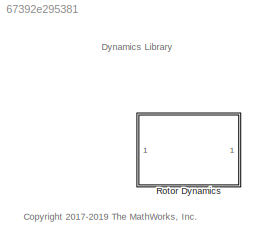
MODEL slx_67392e295381
KIND library
CONFIG AbsTol = auto
CONFIG EnableMultiTasking = on
CONFIG FixedStep = auto
CONFIG MaxStep = auto
CONFIG MinStep = auto
CONFIG RelTol = 1e-3
CONFIG SampleTimeConstraint = Unconstrained
CONFIG SolverName = ode45
CONFIG StartTime = 0.0
CONFIG StopTime = 10.0
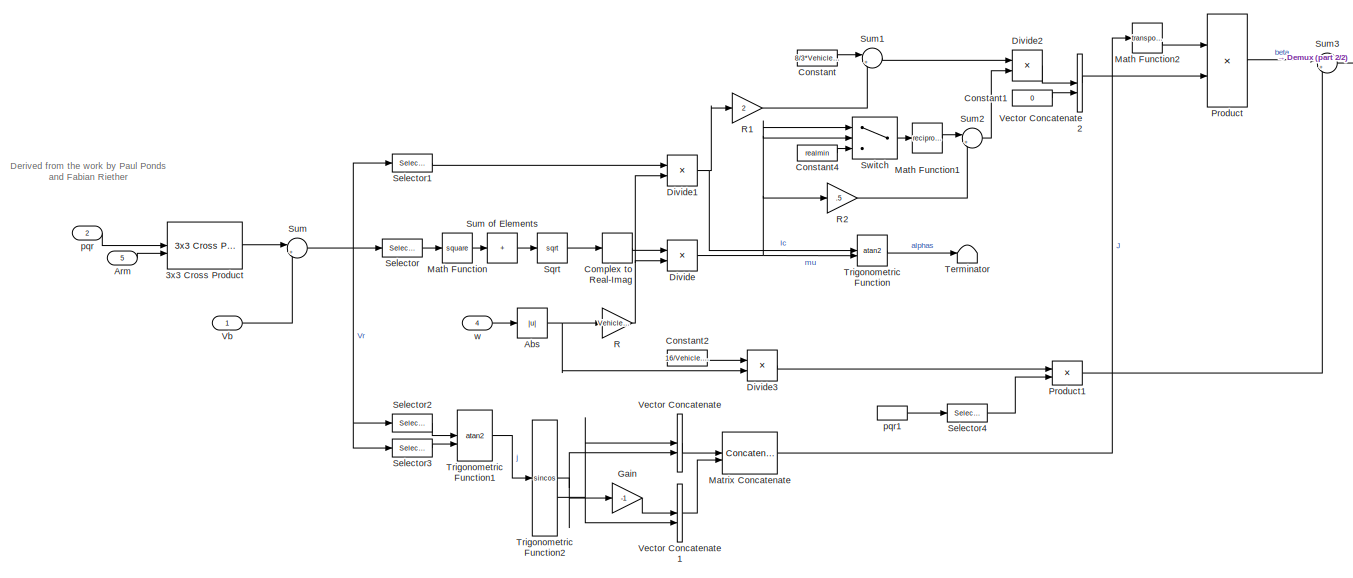
[diagram: Rotor Dynamics - part 1/2, left side, full height]
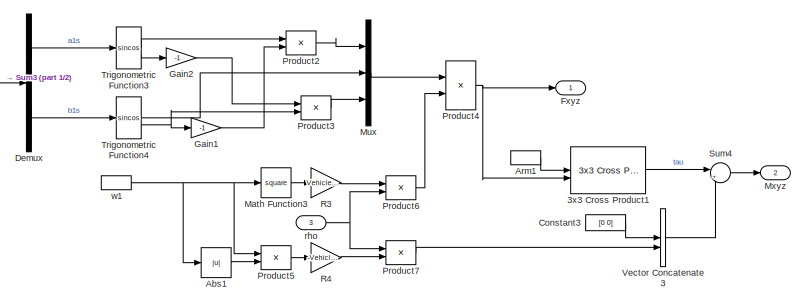
[diagram: Rotor Dynamics - part 2/2, middle right region]
BLOCK [SubSystem] Rotor Dynamics
  RTWFcnNameOpts = Use subsystem name
  RTWFileNameOpts = Use function name
  RTWSystemCode = Reusable function
  TreatAsAtomicUnit = on
BLOCK [Reference] Rotor Dynamics/3x3 Cross Product  REF=sharedutil/3x3 Cross Product
  SourceBlock = sharedutil/3x3 Cross Product
  SourceType = CrossProduct
BLOCK [Reference] Rotor Dynamics/3x3 Cross Product1  REF=sharedutil/3x3 Cross Product
  SourceBlock = sharedutil/3x3 Cross Product
  SourceType = CrossProduct
BLOCK [Abs] Rotor Dynamics/Abs
  SaturateOnIntegerOverflow = off
BLOCK [Abs] Rotor Dynamics/Abs1
  SaturateOnIntegerOverflow = off
BLOCK [Inport] Rotor Dynamics/Arm
  Port = 5
  PortDimensions = [3 1]
BLOCK [InportShadow] Rotor Dynamics/Arm1
  Port = 5
  PortDimensions = [3 1]
BLOCK [ComplexToRealImag] Rotor Dynamics/Complex to Real-Imag
  Output = Real
BLOCK [Constant] Rotor Dynamics/Constant
  Value = 8/3*Vehicle.Rotor.theta0+2*Vehicle.Rotor.theta1
BLOCK [Constant] Rotor Dynamics/Constant1
  Value = 0
BLOCK [Constant] Rotor Dynamics/Constant2
  Value = 16/Vehicle.Rotor.lock
BLOCK [Constant] Rotor Dynamics/Constant3
  Value = [0 0]
BLOCK [Constant] Rotor Dynamics/Constant4
  Value = realmin
BLOCK [Demux] Rotor Dynamics/Demux
  Outputs = 2
BLOCK [Product] Rotor Dynamics/Divide
  Inputs = */
BLOCK [Product] Rotor Dynamics/Divide1
  Inputs = */
BLOCK [Product] Rotor Dynamics/Divide2
  Inputs = */
BLOCK [Product] Rotor Dynamics/Divide3
  Inputs = */
BLOCK [Outport] Rotor Dynamics/Fxyz
  PortDimensions = [3 1]
  VectorParamsAs1DForOutWhenUnconnected = off
BLOCK [Gain] Rotor Dynamics/Gain
  Gain = -1
BLOCK [Gain] Rotor Dynamics/Gain1
  Gain = -1
BLOCK [Gain] Rotor Dynamics/Gain2
  Gain = -1
BLOCK [Math] Rotor Dynamics/Math Function
  Operator = square
  SignedPower = on
BLOCK [Math] Rotor Dynamics/Math Function1
  Operator = reciprocal
  SignedPower = on
BLOCK [Math] Rotor Dynamics/Math Function2
  Operator = transpose
  SignedPower = on
BLOCK [Math] Rotor Dynamics/Math Function3
  Operator = square
  SignedPower = on
BLOCK [Concatenate] Rotor Dynamics/Matrix Concatenate
  ConcatenateDimension = 2
  Mode = Multidimensional array
BLOCK [Mux] Rotor Dynamics/Mux
  DisplayOption = bar
  Inputs = 3
BLOCK [Outport] Rotor Dynamics/Mxyz
  Port = 2
  PortDimensions = [3 1]
  VectorParamsAs1DForOutWhenUnconnected = off
BLOCK [Product] Rotor Dynamics/Product
  Multiplication = Matrix(*)
BLOCK [Product] Rotor Dynamics/Product1
BLOCK [Product] Rotor Dynamics/Product2
BLOCK [Product] Rotor Dynamics/Product3
BLOCK [Product] Rotor Dynamics/Product4
BLOCK [Product] Rotor Dynamics/Product5
BLOCK [Product] Rotor Dynamics/Product6
BLOCK [Product] Rotor Dynamics/Product7
BLOCK [Gain] Rotor Dynamics/R
  Gain = Vehicle.Rotor.radius
BLOCK [Gain] Rotor Dynamics/R1
  Gain = 2
BLOCK [Gain] Rotor Dynamics/R2
  Gain = .5
BLOCK [Gain] Rotor Dynamics/R3
  Gain = Vehicle.Rotor.Ct*Vehicle.Rotor.radius^2*Vehicle.Rotor.area
BLOCK [Gain] Rotor Dynamics/R4
  Gain = -Vehicle.Rotor.Cq*Vehicle.Rotor.radius^3*Vehicle.Rotor.area
BLOCK [Selector] Rotor Dynamics/Selector
  IndexOptions = Index vector (dialog)
  Indices = [1 2]
  InputPortWidth = 3
  OutputSizes = 1
BLOCK [Selector] Rotor Dynamics/Selector1
  IndexOptions = Index vector (dialog)
  Indices = [3]
  InputPortWidth = 3
  OutputSizes = 1
BLOCK [Selector] Rotor Dynamics/Selector2
  IndexOptions = Index vector (dialog)
  Indices = [2]
  InputPortWidth = 3
  OutputSizes = 1
BLOCK [Selector] Rotor Dynamics/Selector3
  IndexOptions = Index vector (dialog)
  Indices = [1]
  InputPortWidth = 3
  OutputSizes = 1
BLOCK [Selector] Rotor Dynamics/Selector4
  IndexOptions = Index vector (dialog)
  Indices = [2 1]
  InputPortWidth = 3
  OutputSizes = 1
BLOCK [Sqrt] Rotor Dynamics/Sqrt
  OutputSignalType = complex
BLOCK [Sum] Rotor Dynamics/Sum
  Inputs = |++
BLOCK [Sum] Rotor Dynamics/Sum of Elements
  IconShape = rectangular
  Inputs = +
BLOCK [Sum] Rotor Dynamics/Sum1
  Inputs = |+-
BLOCK [Sum] Rotor Dynamics/Sum2
  Inputs = |+-
BLOCK [Sum] Rotor Dynamics/Sum3
  Inputs = |+-
BLOCK [Sum] Rotor Dynamics/Sum4
  Inputs = |++
BLOCK [Switch] Rotor Dynamics/Switch
  Criteria = u2 ~= 0
  InputSameDT = off
  SaturateOnIntegerOverflow = off
BLOCK [Terminator] Rotor Dynamics/Terminator
BLOCK [Trigonometry] Rotor Dynamics/Trigonometric Function
  Operator = atan2
BLOCK [Trigonometry] Rotor Dynamics/Trigonometric Function1
  Operator = atan2
BLOCK [Trigonometry] Rotor Dynamics/Trigonometric Function2
  Operator = sincos
BLOCK [Trigonometry] Rotor Dynamics/Trigonometric Function3
  Operator = sincos
BLOCK [Trigonometry] Rotor Dynamics/Trigonometric Function4
  Operator = sincos
BLOCK [Inport] Rotor Dynamics/Vb
  PortDimensions = 3
BLOCK [Concatenate] Rotor Dynamics/Vector Concatenate
BLOCK [Concatenate] Rotor Dynamics/Vector Concatenate1
BLOCK [Concatenate] Rotor Dynamics/Vector Concatenate2
BLOCK [Concatenate] Rotor Dynamics/Vector Concatenate3
BLOCK [Inport] Rotor Dynamics/pqr
  Port = 2
  PortDimensions = 3
BLOCK [InportShadow] Rotor Dynamics/pqr1
  Port = 2
  PortDimensions = 3
BLOCK [Inport] Rotor Dynamics/rho
  Port = 3
  PortDimensions = 1
BLOCK [Inport] Rotor Dynamics/w
  Port = 4
  PortDimensions = [1 1]
BLOCK [InportShadow] Rotor Dynamics/w1
  Port = 4
  PortDimensions = [1 1]
ANNOTATION (root): <copyright redacted>
ANNOTATION (root): Dynamics Library
ANNOTATION Rotor Dynamics: Derived from the work by Paul Ponds and Fabian Riether
LINE Rotor Dynamics/3x3 Cross Product1:1 -> Rotor Dynamics/Sum4:1
LINE Rotor Dynamics/3x3 Cross Product:1 -> Rotor Dynamics/Sum:1
LINE Rotor Dynamics/Abs1:1 -> Rotor Dynamics/Product5:2
NET Rotor Dynamics/Abs:1 -> Rotor Dynamics/Divide3:2, Rotor Dynamics/R:1
LINE Rotor Dynamics/Arm1:1 -> Rotor Dynamics/3x3 Cross Product1:1
LINE Rotor Dynamics/Arm:1 -> Rotor Dynamics/3x3 Cross Product:2
LINE Rotor Dynamics/Complex to Real-Imag:1 -> Rotor Dynamics/Divide:1
LINE Rotor Dynamics/Constant1:1 -> Rotor Dynamics/Vector Concatenate2:2
LINE Rotor Dynamics/Constant2:1 -> Rotor Dynamics/Divide3:1
LINE Rotor Dynamics/Constant3:1 -> Rotor Dynamics/Vector Concatenate3:1
LINE Rotor Dynamics/Constant4:1 -> Rotor Dynamics/Switch:3
LINE Rotor Dynamics/Constant:1 -> Rotor Dynamics/Sum1:1
LINE Rotor Dynamics/Demux:1 -> Rotor Dynamics/Trigonometric Function3:1
LINE Rotor Dynamics/Demux:2 -> Rotor Dynamics/Trigonometric Function4:1
NET Rotor Dynamics/Divide1:1 -> Rotor Dynamics/R1:1, Rotor Dynamics/Trigonometric Function:1
LINE Rotor Dynamics/Divide2:1 -> Rotor Dynamics/Vector Concatenate2:1
LINE Rotor Dynamics/Divide3:1 -> Rotor Dynamics/Product1:1
NET Rotor Dynamics/Divide:1 -> Rotor Dynamics/R2:1, Rotor Dynamics/Switch:1, Rotor Dynamics/Switch:2, Rotor Dynamics/Trigonometric Function:2
LINE Rotor Dynamics/Gain1:1 -> Rotor Dynamics/Product2:2
LINE Rotor Dynamics/Gain2:1 -> Rotor Dynamics/Product3:1
LINE Rotor Dynamics/Gain:1 -> Rotor Dynamics/Vector Concatenate1:1
LINE Rotor Dynamics/Math Function1:1 -> Rotor Dynamics/Sum2:1
LINE Rotor Dynamics/Math Function2:1 -> Rotor Dynamics/Product:1
LINE Rotor Dynamics/Math Function3:1 -> Rotor Dynamics/R3:1
LINE Rotor Dynamics/Math Function:1 -> Rotor Dynamics/Sum of Elements:1
LINE Rotor Dynamics/Matrix Concatenate:1 -> Rotor Dynamics/Math Function2:1
LINE Rotor Dynamics/Mux:1 -> Rotor Dynamics/Product4:1
LINE Rotor Dynamics/Product1:1 -> Rotor Dynamics/Sum3:2
LINE Rotor Dynamics/Product2:1 -> Rotor Dynamics/Mux:1
LINE Rotor Dynamics/Product3:1 -> Rotor Dynamics/Mux:3
NET Rotor Dynamics/Product4:1 -> Rotor Dynamics/3x3 Cross Product1:2, Rotor Dynamics/Fxyz:1
LINE Rotor Dynamics/Product5:1 -> Rotor Dynamics/R4:1
LINE Rotor Dynamics/Product6:1 -> Rotor Dynamics/Product4:2
LINE Rotor Dynamics/Product7:1 -> Rotor Dynamics/Vector Concatenate3:2
LINE Rotor Dynamics/Product:1 -> Rotor Dynamics/Sum3:1
LINE Rotor Dynamics/R1:1 -> Rotor Dynamics/Sum1:2
LINE Rotor Dynamics/R2:1 -> Rotor Dynamics/Sum2:2
LINE Rotor Dynamics/R3:1 -> Rotor Dynamics/Product6:1
LINE Rotor Dynamics/R4:1 -> Rotor Dynamics/Product7:2
NET Rotor Dynamics/R:1 -> Rotor Dynamics/Divide1:2, Rotor Dynamics/Divide:2
LINE Rotor Dynamics/Selector1:1 -> Rotor Dynamics/Divide1:1
LINE Rotor Dynamics/Selector2:1 -> Rotor Dynamics/Trigonometric Function1:1
LINE Rotor Dynamics/Selector3:1 -> Rotor Dynamics/Trigonometric Function1:2
LINE Rotor Dynamics/Selector4:1 -> Rotor Dynamics/Product1:2
LINE Rotor Dynamics/Selector:1 -> Rotor Dynamics/Math Function:1
LINE Rotor Dynamics/Sqrt:1 -> Rotor Dynamics/Complex to Real-Imag:1
LINE Rotor Dynamics/Sum of Elements:1 -> Rotor Dynamics/Sqrt:1
LINE Rotor Dynamics/Sum1:1 -> Rotor Dynamics/Divide2:1
LINE Rotor Dynamics/Sum2:1 -> Rotor Dynamics/Divide2:2
LINE Rotor Dynamics/Sum3:1 -> Rotor Dynamics/Demux:1
LINE Rotor Dynamics/Sum4:1 -> Rotor Dynamics/Mxyz:1
NET Rotor Dynamics/Sum:1 -> Rotor Dynamics/Selector1:1, Rotor Dynamics/Selector2:1, Rotor Dynamics/Selector3:1, Rotor Dynamics/Selector:1
LINE Rotor Dynamics/Switch:1 -> Rotor Dynamics/Math Function1:1
LINE Rotor Dynamics/Trigonometric Function1:1 -> Rotor Dynamics/Trigonometric Function2:1
NET Rotor Dynamics/Trigonometric Function2:1 -> Rotor Dynamics/Gain:1, Rotor Dynamics/Vector Concatenate:2
NET Rotor Dynamics/Trigonometric Function2:2 -> Rotor Dynamics/Vector Concatenate1:2, Rotor Dynamics/Vector Concatenate:1
LINE Rotor Dynamics/Trigonometric Function3:1 -> Rotor Dynamics/Product2:1
LINE Rotor Dynamics/Trigonometric Function3:2 -> Rotor Dynamics/Gain2:1
LINE Rotor Dynamics/Trigonometric Function4:1 -> Rotor Dynamics/Mux:2
NET Rotor Dynamics/Trigonometric Function4:2 -> Rotor Dynamics/Gain1:1, Rotor Dynamics/Product3:2
LINE Rotor Dynamics/Trigonometric Function:1 -> Rotor Dynamics/Terminator:1
LINE Rotor Dynamics/Vb:1 -> Rotor Dynamics/Sum:2
LINE Rotor Dynamics/Vector Concatenate1:1 -> Rotor Dynamics/Matrix Concatenate:2
LINE Rotor Dynamics/Vector Concatenate2:1 -> Rotor Dynamics/Product:2
LINE Rotor Dynamics/Vector Concatenate3:1 -> Rotor Dynamics/Sum4:2
LINE Rotor Dynamics/Vector Concatenate:1 -> Rotor Dynamics/Matrix Concatenate:1
LINE Rotor Dynamics/pqr1:1 -> Rotor Dynamics/Selector4:1
LINE Rotor Dynamics/pqr:1 -> Rotor Dynamics/3x3 Cross Product:1
NET Rotor Dynamics/rho:1 -> Rotor Dynamics/Product6:2, Rotor Dynamics/Product7:1
NET Rotor Dynamics/w1:1 -> Rotor Dynamics/Abs1:1, Rotor Dynamics/Math Function3:1, Rotor Dynamics/Product5:1
LINE Rotor Dynamics/w:1 -> Rotor Dynamics/Abs:1
note: NET lines group one-source signal fan-out (src -> all destinations, sorted); 1:1 wires keep LINE
